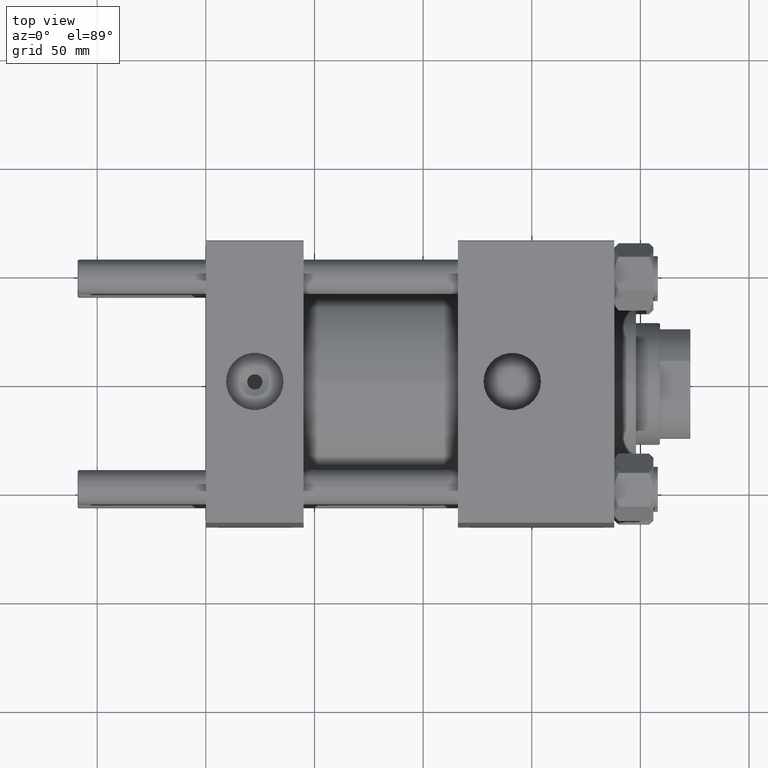
[diagram: clean part render]
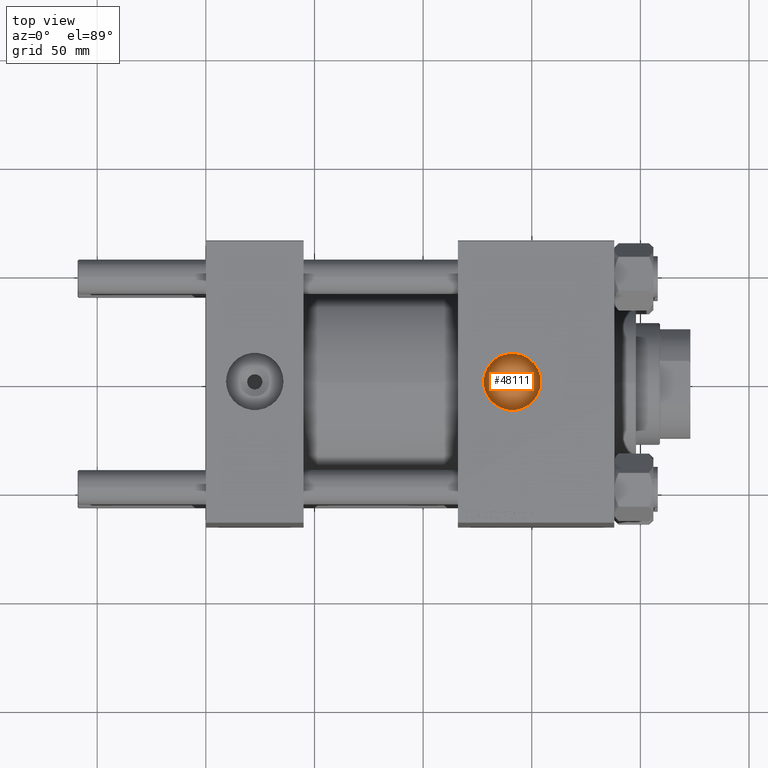
[diagram: same view with one face highlighted and labeled with its STEP entity id]
A machine part, top view. The second image highlights one B-rep face of the part: STEP entity #48111.
In plain terms, the highlighted planar face has unit normal (0, 0, 1).
Its self-contained STEP definition (entity closure, byte-faithful):
#3924 = EDGE_LOOP ( 'NONE', ( #26115, #45588 ) ) ;
#4633 = EDGE_CURVE ( 'NONE', #5377, #25213, #8328, .T. ) ;
#5377 = VERTEX_POINT ( 'NONE', #26189 ) ;
#7625 = CIRCLE ( 'NONE', #40179, 13.22000000000000952 ) ;
#7807 = FACE_OUTER_BOUND ( 'NONE', #3924, .T. ) ;
#8328 = CIRCLE ( 'NONE', #9954, 13.22000000000000952 ) ;
#8417 = DIRECTION ( 'NONE',  ( 1.000000000000000000, 0.000000000000000000, 0.000000000000000000 ) ) ;
#9954 = AXIS2_PLACEMENT_3D ( 'NONE', #19534, #32030, #43009 ) ;
#10615 = PLANE ( 'NONE',  #18317 ) ;
#11362 = DIRECTION ( 'NONE',  ( 0.000000000000000000, 0.000000000000000000, 1.000000000000000000 ) ) ;
#14454 = CARTESIAN_POINT ( 'NONE',  ( 127.7799999999999443, -6.938893903907228378E-15, 48.59999999999998721 ) ) ;
#18317 = AXIS2_PLACEMENT_3D ( 'NONE', #49401, #11362, #26175 ) ;
#19534 = CARTESIAN_POINT ( 'NONE',  ( 140.9999999999999716, -6.938893903907228378E-15, 48.59999999999998721 ) ) ;
#25213 = VERTEX_POINT ( 'NONE', #14454 ) ;
#26115 = ORIENTED_EDGE ( 'NONE', *, *, #43333, .T. ) ;
#26175 = DIRECTION ( 'NONE',  ( 1.000000000000000000, 0.000000000000000000, -0.000000000000000000 ) ) ;
#26189 = CARTESIAN_POINT ( 'NONE',  ( 154.2199999999999704, -5.319910835434425649E-15, 48.59999999999998721 ) ) ;
#27797 = DIRECTION ( 'NONE',  ( 0.000000000000000000, 0.000000000000000000, 1.000000000000000000 ) ) ;
#32030 = DIRECTION ( 'NONE',  ( 0.000000000000000000, 0.000000000000000000, 1.000000000000000000 ) ) ;
#35473 = CARTESIAN_POINT ( 'NONE',  ( 140.9999999999999716, -6.938893903907228378E-15, 48.59999999999998721 ) ) ;
#40179 = AXIS2_PLACEMENT_3D ( 'NONE', #35473, #27797, #8417 ) ;
#43009 = DIRECTION ( 'NONE',  ( 1.000000000000000000, 0.000000000000000000, 0.000000000000000000 ) ) ;
#43333 = EDGE_CURVE ( 'NONE', #25213, #5377, #7625, .T. ) ;
#45588 = ORIENTED_EDGE ( 'NONE', *, *, #4633, .T. ) ;
#48111 = ADVANCED_FACE ( 'NONE', ( #7807 ), #10615, .T. ) ;
#49401 = CARTESIAN_POINT ( 'NONE',  ( 140.9999999999999716, -6.938893903907228378E-15, 48.59999999999998721 ) ) ;